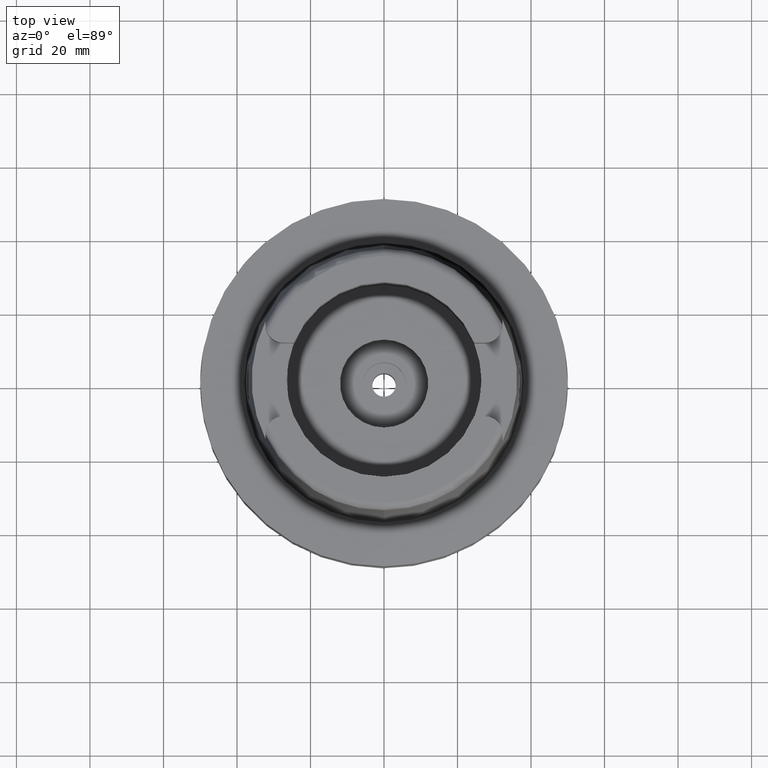
[diagram: clean part render]
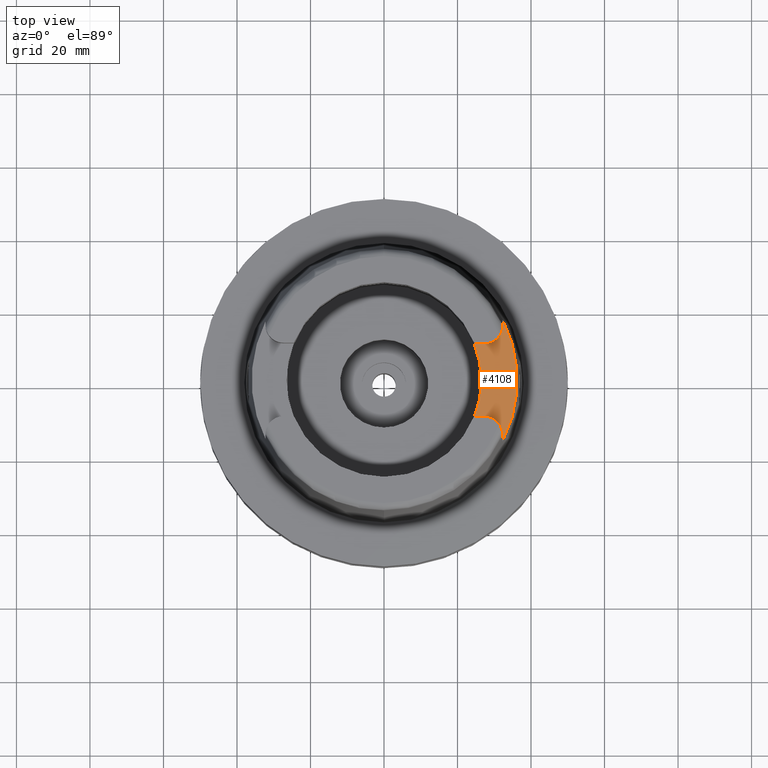
[diagram: same view with one face highlighted and labeled with its STEP entity id]
A machine part, top view. The second image highlights one B-rep face of the part: STEP entity #4108.
In plain terms, the highlighted planar face has unit normal (0, 0, 1).
Its self-contained STEP definition (entity closure, byte-faithful):
#144 = CARTESIAN_POINT ( 'NONE',  ( 27.36999999999999744, -10.00999999999999979, 35.00000000000000000 ) ) ;
#408 = DIRECTION ( 'NONE',  ( 1.000000000000000000, -1.416925057436999913E-13, 0.0000000000000000000 ) ) ;
#597 = CARTESIAN_POINT ( 'NONE',  ( 32.25000000000000000, 14.89000000000000057, 35.00000000000000000 ) ) ;
#626 = CARTESIAN_POINT ( 'NONE',  ( 32.25000000000000000, 14.89000000000000057, 35.00000000000000000 ) ) ;
#650 = DIRECTION ( 'NONE',  ( 0.0000000000000000000, 0.0000000000000000000, 1.000000000000000000 ) ) ;
#1040 = CIRCLE ( 'NONE', #2400, 4.880000000000002558 ) ;
#1051 = CARTESIAN_POINT ( 'NONE',  ( 27.36999999999999744, 14.89000000000000057, 35.00000000000000000 ) ) ;
#1101 = ORIENTED_EDGE ( 'NONE', *, *, #2471, .F. ) ;
#1260 = DIRECTION ( 'NONE',  ( 0.0000000000000000000, 0.0000000000000000000, 1.000000000000000000 ) ) ;
#1313 = CARTESIAN_POINT ( 'NONE',  ( 32.25000000000000000, -16.55285457013000183, 35.00000000000000000 ) ) ;
#1365 = VERTEX_POINT ( 'NONE', #626 ) ;
#1386 = CARTESIAN_POINT ( 'NONE',  ( 27.36999999999999744, 10.00999999999999979, 35.00000000000000000 ) ) ;
#1440 = DIRECTION ( 'NONE',  ( 0.0000000000000000000, 0.0000000000000000000, -1.000000000000000000 ) ) ;
#1576 = VECTOR ( 'NONE', #408, 1000.000000000000000 ) ;
#1623 = VERTEX_POINT ( 'NONE', #1386 ) ;
#1645 = FACE_OUTER_BOUND ( 'NONE', #3812, .T. ) ;
#1686 = CARTESIAN_POINT ( 'NONE',  ( 32.25000000000000000, -14.89000000000000057, 35.00000000000000000 ) ) ;
#1912 = DIRECTION ( 'NONE',  ( -2.841526755965894529E-06, 0.9999999999959628960, 2.136488158935919871E-14 ) ) ;
#1919 = DIRECTION ( 'NONE',  ( 0.0000000000000000000, 0.0000000000000000000, 1.000000000000000000 ) ) ;
#1956 = DIRECTION ( 'NONE',  ( 0.9259134021805098813, -0.3777358490566039562, 0.0000000000000000000 ) ) ;
#2055 = CARTESIAN_POINT ( 'NONE',  ( 24.53670515777999839, 10.00999999999999979, 35.00000000000000000 ) ) ;
#2213 = AXIS2_PLACEMENT_3D ( 'NONE', #3220, #1919, #1956 ) ;
#2329 = VERTEX_POINT ( 'NONE', #4107 ) ;
#2392 = DIRECTION ( 'NONE',  ( -1.000000000000000000, -1.460812116737999860E-13, 0.0000000000000000000 ) ) ;
#2400 = AXIS2_PLACEMENT_3D ( 'NONE', #2565, #2983, #3982 ) ;
#2471 = EDGE_CURVE ( 'NONE', #2329, #4278, #3119, .T. ) ;
#2565 = CARTESIAN_POINT ( 'NONE',  ( 27.36999999999999744, -14.89000000000000057, 35.00000000000000000 ) ) ;
#2569 = VECTOR ( 'NONE', #2392, 1000.000000000000000 ) ;
#2619 = EDGE_CURVE ( 'NONE', #4473, #4793, #3357, .T. ) ;
#2651 = VERTEX_POINT ( 'NONE', #2055 ) ;
#2659 = ORIENTED_EDGE ( 'NONE', *, *, #5018, .F. ) ;
#2870 = CARTESIAN_POINT ( 'NONE',  ( 32.25000000000000000, -15.99856971323821142, 35.00000000000000000 ) ) ;
#2983 = DIRECTION ( 'NONE',  ( 0.0000000000000000000, 0.0000000000000000000, 1.000000000000000000 ) ) ;
#3008 = B_SPLINE_CURVE_WITH_KNOTS ( 'NONE', 3,
 ( #3789, #2870, #3303, #4670 ),
 .UNSPECIFIED., .F., .F.,
 ( 4, 4 ),
 ( 0.0000000000000000000, 1.000000000000000000 ),
 .UNSPECIFIED. ) ;
#3119 = CIRCLE ( 'NONE', #3401, 36.24995854370000359 ) ;
#3220 = CARTESIAN_POINT ( 'NONE',  ( 0.0000000000000000000, 0.0000000000000000000, 35.00000000000000000 ) ) ;
#3269 = EDGE_CURVE ( 'NONE', #2651, #1623, #3921, .T. ) ;
#3303 = CARTESIAN_POINT ( 'NONE',  ( 32.25000000000000000, -15.44428485661910599, 35.00000000000000000 ) ) ;
#3330 = CIRCLE ( 'NONE', #4428, 4.879999999999999005 ) ;
#3335 = ORIENTED_EDGE ( 'NONE', *, *, #4454, .F. ) ;
#3347 = VERTEX_POINT ( 'NONE', #1686 ) ;
#3357 = LINE ( 'NONE', #4235, #2569 ) ;
#3393 = ORIENTED_EDGE ( 'NONE', *, *, #3269, .F. ) ;
#3401 = AXIS2_PLACEMENT_3D ( 'NONE', #3938, #1440, #4535 ) ;
#3434 = CARTESIAN_POINT ( 'NONE',  ( 0.0000000000000000000, 0.0000000000000000000, 35.00000000000000000 ) ) ;
#3460 = ORIENTED_EDGE ( 'NONE', *, *, #4682, .F. ) ;
#3593 = AXIS2_PLACEMENT_3D ( 'NONE', #3434, #1260, #4254 ) ;
#3695 = VECTOR ( 'NONE', #1912, 1000.000000000000114 ) ;
#3789 = CARTESIAN_POINT ( 'NONE',  ( 32.25000000000000000, -16.55285457013000183, 35.00000000000000000 ) ) ;
#3812 = EDGE_LOOP ( 'NONE', ( #5082, #2659, #3460, #1101, #3335, #5611, #3393, #5433 ) ) ;
#3921 = LINE ( 'NONE', #4810, #1576 ) ;
#3931 = EDGE_CURVE ( 'NONE', #4793, #2651, #3966, .T. ) ;
#3938 = CARTESIAN_POINT ( 'NONE',  ( 0.0000000000000000000, 0.0000000000000000000, 35.00000000000000000 ) ) ;
#3966 = CIRCLE ( 'NONE', #2213, 26.50000000000000711 ) ;
#3982 = DIRECTION ( 'NONE',  ( 1.000000000000000000, 0.0000000000000000000, 0.0000000000000000000 ) ) ;
#4107 = CARTESIAN_POINT ( 'NONE',  ( 32.25000000000000000, 16.55285457013000183, 35.00000000000000000 ) ) ;
#4108 = ADVANCED_FACE ( 'NONE', ( #1645 ), #5571, .T. ) ;
#4235 = CARTESIAN_POINT ( 'NONE',  ( 27.36999999999999744, -10.00999999999999979, 35.00000000000000000 ) ) ;
#4254 = DIRECTION ( 'NONE',  ( 1.000000000000000000, 0.0000000000000000000, 0.0000000000000000000 ) ) ;
#4278 = VERTEX_POINT ( 'NONE', #1313 ) ;
#4428 = AXIS2_PLACEMENT_3D ( 'NONE', #1051, #650, #4478 ) ;
#4454 = EDGE_CURVE ( 'NONE', #1365, #2329, #4509, .T. ) ;
#4473 = VERTEX_POINT ( 'NONE', #144 ) ;
#4478 = DIRECTION ( 'NONE',  ( 0.0000000000000000000, -1.000000000000000000, 0.0000000000000000000 ) ) ;
#4479 = EDGE_CURVE ( 'NONE', #1623, #1365, #3330, .T. ) ;
#4509 = LINE ( 'NONE', #597, #3695 ) ;
#4535 = DIRECTION ( 'NONE',  ( 0.8896561898442558736, 0.4566309931134779343, 0.0000000000000000000 ) ) ;
#4670 = CARTESIAN_POINT ( 'NONE',  ( 32.25000000000000000, -14.89000000000000057, 35.00000000000000000 ) ) ;
#4682 = EDGE_CURVE ( 'NONE', #4278, #3347, #3008, .T. ) ;
#4793 = VERTEX_POINT ( 'NONE', #4951 ) ;
#4810 = CARTESIAN_POINT ( 'NONE',  ( 24.53670515777999839, 10.00999999999999979, 35.00000000000000000 ) ) ;
#4951 = CARTESIAN_POINT ( 'NONE',  ( 24.53670515777999839, -10.00999999999999979, 35.00000000000000000 ) ) ;
#5018 = EDGE_CURVE ( 'NONE', #3347, #4473, #1040, .T. ) ;
#5082 = ORIENTED_EDGE ( 'NONE', *, *, #2619, .F. ) ;
#5433 = ORIENTED_EDGE ( 'NONE', *, *, #3931, .F. ) ;
#5571 = PLANE ( 'NONE',  #3593 ) ;
#5611 = ORIENTED_EDGE ( 'NONE', *, *, #4479, .F. ) ;